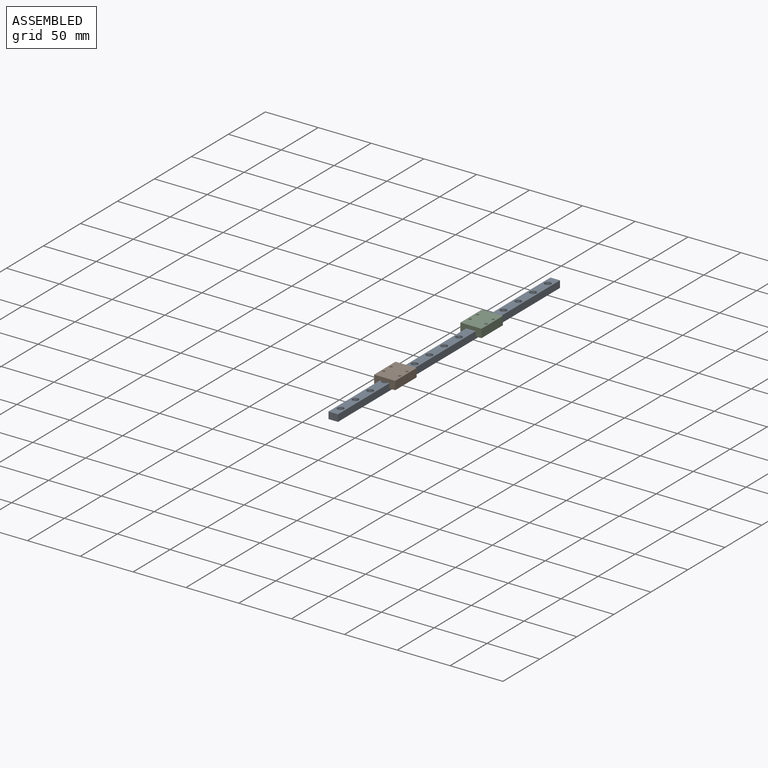
[diagram: assembled view]
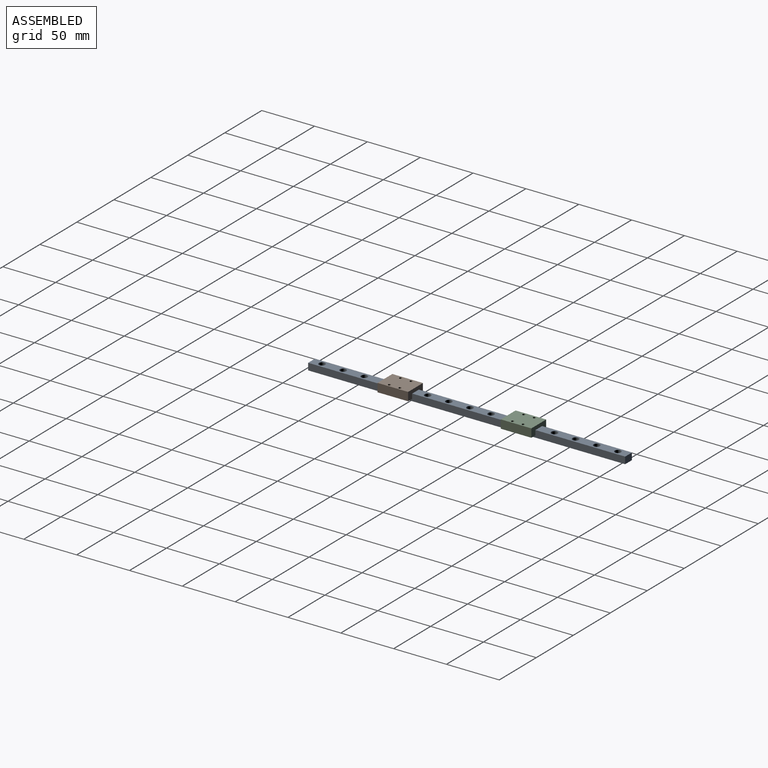
[diagram: assembled view, second angle]
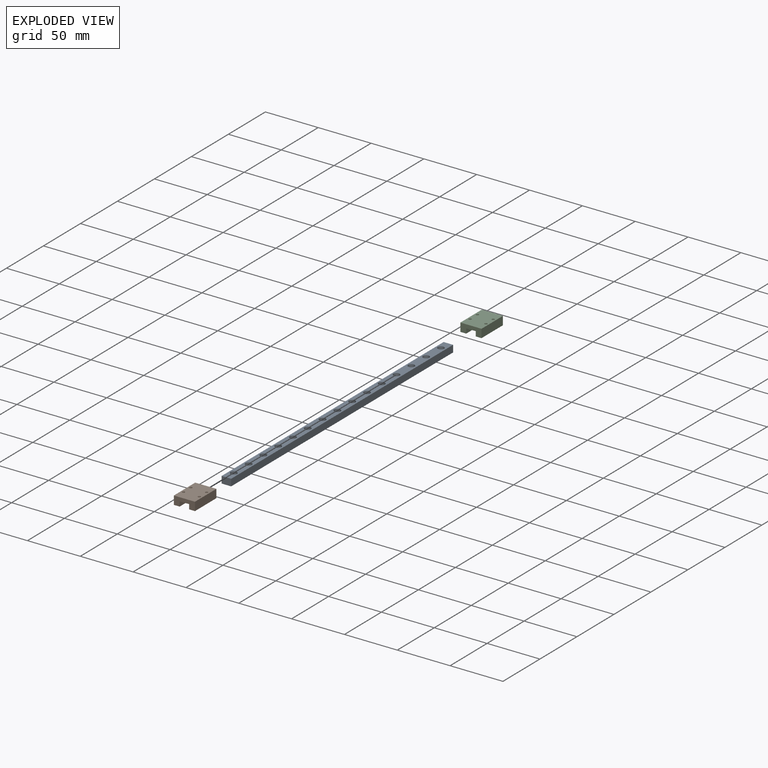
[diagram: exploded view]
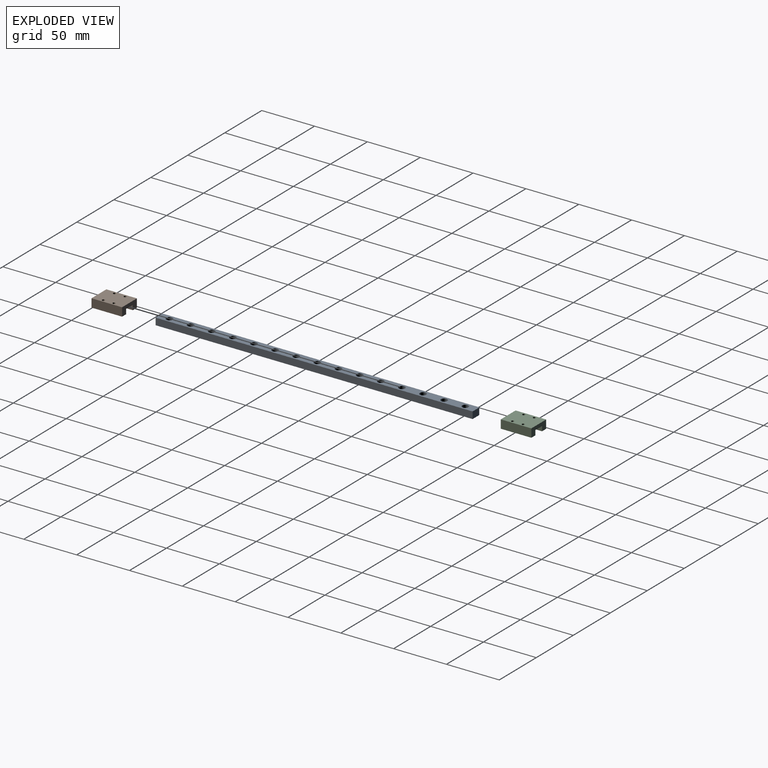
[diagram: exploded view, second angle]
ASSEMBLY  parts=3 mates=2
PART A: 51 faces, bbox 9x300x6.5 mm
  f0: plane 300x9mm, normal (0,0,-1), area 2555.7mm2, adj f1,f3,f4,f5,f6,f9,f12,f15
  f1: plane 300x6.5mm, normal (1,0,0), area 1950mm2, adj f0,f2,f4,f5
  f2: plane 300x9mm, normal (0,0,1), area 2275.9mm2, adj f1,f3,f4,f5,f8,f11,f14,f17
  f3: plane 300x6.5mm, normal (-1,0,0), area 1950mm2, adj f0,f2,f4,f5
  f4: plane 9x6.5mm, normal (0,-1,0), area 58.5mm2, adj f0,f1,f2,f3
  f5: plane 9x6.5mm, normal (0,1,0), area 58.5mm2, adj f0,f1,f2,f3
  f6: cylinder r=1.75mm len=3.5mm, axis (0,0,1), area 38.5mm2, adj f0,f7
  f7: plane 6x6mm, normal (0,0,1), area 18.7mm2, adj f6,f8
  f8: cylinder r=3mm len=6mm, axis (0,0,1), area 56.5mm2, adj f2,f7
  f9: cylinder r=1.75mm len=3.5mm, axis (0,0,1), area 38.5mm2, adj f0,f10
  f10: plane 6x6mm, normal (0,0,1), area 18.7mm2, adj f9,f11
  f11: cylinder r=3mm len=6mm, axis (0,0,1), area 56.5mm2, adj f2,f10
  f12: cylinder r=1.75mm len=3.5mm, axis (0,0,1), area 38.5mm2, adj f0,f13
  f13: plane 6x6mm, normal (0,0,1), area 18.7mm2, adj f12,f14
  f14: cylinder r=3mm len=6mm, axis (0,0,1), area 56.5mm2, adj f2,f13
  f15: cylinder r=1.75mm len=3.5mm, axis (0,0,1), area 38.5mm2, adj f0,f16
  f16: plane 6x6mm, normal (0,0,1), area 18.7mm2, adj f15,f17
  f17: cylinder r=3mm len=6mm, axis (0,0,1), area 56.5mm2, adj f2,f16
  f18: cylinder r=1.75mm len=3.5mm, axis (0,0,1), area 38.5mm2, adj f0,f19
  f19: plane 6x6mm, normal (0,0,1), area 18.7mm2, adj f18,f20
  f20: cylinder r=3mm len=6mm, axis (0,0,1), area 56.5mm2, adj f2,f19
  f21: cylinder r=1.75mm len=3.5mm, axis (0,0,1), area 38.5mm2, adj f0,f22
  f22: plane 6x6mm, normal (0,0,1), area 18.7mm2, adj f21,f23
  f23: cylinder r=3mm len=6mm, axis (0,0,1), area 56.5mm2, adj f2,f22
  f24: cylinder r=1.75mm len=3.5mm, axis (0,0,1), area 38.5mm2, adj f0,f25
  f25: plane 6x6mm, normal (0,0,1), area 18.7mm2, adj f24,f26
  f26: cylinder r=3mm len=6mm, axis (0,0,1), area 56.5mm2, adj f2,f25
  f27: cylinder r=1.75mm len=3.5mm, axis (0,0,1), area 38.5mm2, adj f0,f28
  f28: plane 6x6mm, normal (0,0,1), area 18.7mm2, adj f27,f29
  f29: cylinder r=3mm len=6mm, axis (0,0,1), area 56.5mm2, adj f2,f28
  f30: cylinder r=1.75mm len=3.5mm, axis (0,0,1), area 38.5mm2, adj f0,f31
  f31: plane 6x6mm, normal (0,0,1), area 18.7mm2, adj f30,f32
  f32: cylinder r=3mm len=6mm, axis (0,0,1), area 56.5mm2, adj f2,f31
  f33: cylinder r=1.75mm len=3.5mm, axis (0,0,1), area 38.5mm2, adj f0,f34
  f34: plane 6x6mm, normal (0,0,1), area 18.7mm2, adj f33,f35
  f35: cylinder r=3mm len=6mm, axis (0,0,1), area 56.5mm2, adj f2,f34
  f36: cylinder r=1.75mm len=3.5mm, axis (0,0,1), area 38.5mm2, adj f0,f37
  f37: plane 6x6mm, normal (0,0,1), area 18.7mm2, adj f36,f38
  f38: cylinder r=3mm len=6mm, axis (0,0,1), area 56.5mm2, adj f2,f37
  f39: cylinder r=1.75mm len=3.5mm, axis (0,0,1), area 38.5mm2, adj f0,f40
  f40: plane 6x6mm, normal (0,0,1), area 18.7mm2, adj f39,f41
  f41: cylinder r=3mm len=6mm, axis (0,0,1), area 56.5mm2, adj f2,f40
  f42: cylinder r=1.75mm len=3.5mm, axis (0,0,1), area 38.5mm2, adj f0,f43
  f43: plane 6x6mm, normal (0,0,1), area 18.7mm2, adj f42,f44
  f44: cylinder r=3mm len=6mm, axis (0,0,1), area 56.5mm2, adj f2,f43
  f45: cylinder r=1.75mm len=3.5mm, axis (0,0,1), area 38.5mm2, adj f0,f46
  f46: plane 6x6mm, normal (0,0,1), area 18.7mm2, adj f45,f47
  f47: cylinder r=3mm len=6mm, axis (0,0,1), area 56.5mm2, adj f2,f46
  f48: cylinder r=1.75mm len=3.5mm, axis (0,0,1), area 38.5mm2, adj f0,f49
  f49: plane 6x6mm, normal (0,0,1), area 18.7mm2, adj f48,f50
  f50: cylinder r=3mm len=6mm, axis (0,0,1), area 56.5mm2, adj f2,f49
PART B: 18 faces, bbox 20x28.9x8 mm
  f0: plane 28.9x20mm, normal (0,0,1), area 558.4mm2, adj f1,f7,f8,f9,f11,f13,f15,f17
  f1: plane 28.9x8mm, normal (-1,0,0), area 231.2mm2, adj f0,f2,f8,f9
  f2: plane 28.9x5.5mm, normal (0,0,-1), area 158.9mm2, adj f1,f3,f8,f9
  f3: plane 28.9x4.5mm, normal (1,0,0), area 130.1mm2, adj f2,f4,f8,f9
  f4: plane 28.9x9mm, normal (0,0,-1), area 260.1mm2, adj f3,f5,f8,f9
  f5: plane 28.9x4.5mm, normal (-1,0,0), area 130.1mm2, adj f4,f6,f8,f9
  f6: plane 28.9x5.5mm, normal (0,0,-1), area 158.9mm2, adj f5,f7,f8,f9
  f7: plane 28.9x8mm, normal (1,0,0), area 231.2mm2, adj f0,f6,f8,f9
  f8: plane 20x8mm, normal (0,-1,0), area 119.5mm2, adj f0,f1,f2,f3,f4,f5,f6,f7
  f9: plane 20x8mm, normal (0,1,0), area 119.5mm2, adj f0,f1,f2,f3,f4,f5,f6,f7
  f10: cone r=0mm half-angle=59deg, axis (0,0,1), area 5.7mm2, adj f11
  f11: cylinder r=1.25mm len=5.5mm, axis (0,0,1), area 43.2mm2, adj f0,f10
  f12: cone r=0mm half-angle=59deg, axis (0,0,1), area 5.7mm2, adj f13
  f13: cylinder r=1.25mm len=5.5mm, axis (0,0,1), area 43.2mm2, adj f0,f12
  f14: cone r=0mm half-angle=59deg, axis (0,0,1), area 5.7mm2, adj f15
  f15: cylinder r=1.25mm len=5.5mm, axis (0,0,1), area 43.2mm2, adj f0,f14
  f16: cone r=0mm half-angle=59deg, axis (0,0,1), area 5.7mm2, adj f17
  f17: cylinder r=1.25mm len=5.5mm, axis (0,0,1), area 43.2mm2, adj f0,f16
PART C: same geometry as B
PLACE A rot(axis=(0,1,0),0deg) t=(73.35,458.56,26.91)mm fixed
PLACE B rot(axis=(0,1,0),0deg) t=(73.35,392.53,29.61)mm
PLACE C rot(axis=(0,1,0),0deg) t=(73.35,509.17,29.61)mm
MATE slider A.f4 <-> C.f8  axis (0,-1,0) through (73.35,308.56,30.16)mm
MATE slider B.f8 <-> A.f4  axis (0,-1,0) through (73.35,378.08,30.16)mm
